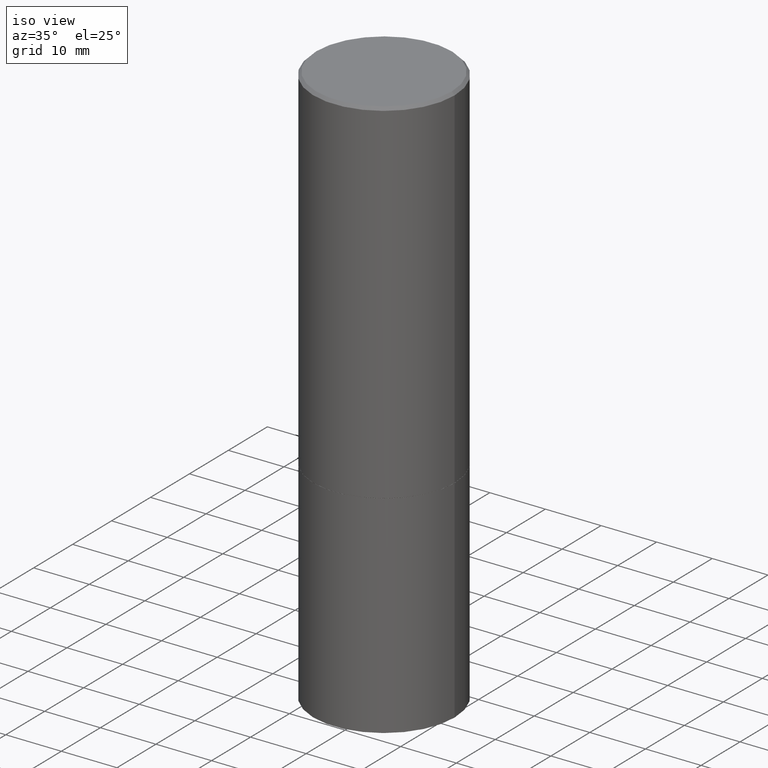
[diagram: clean part render]
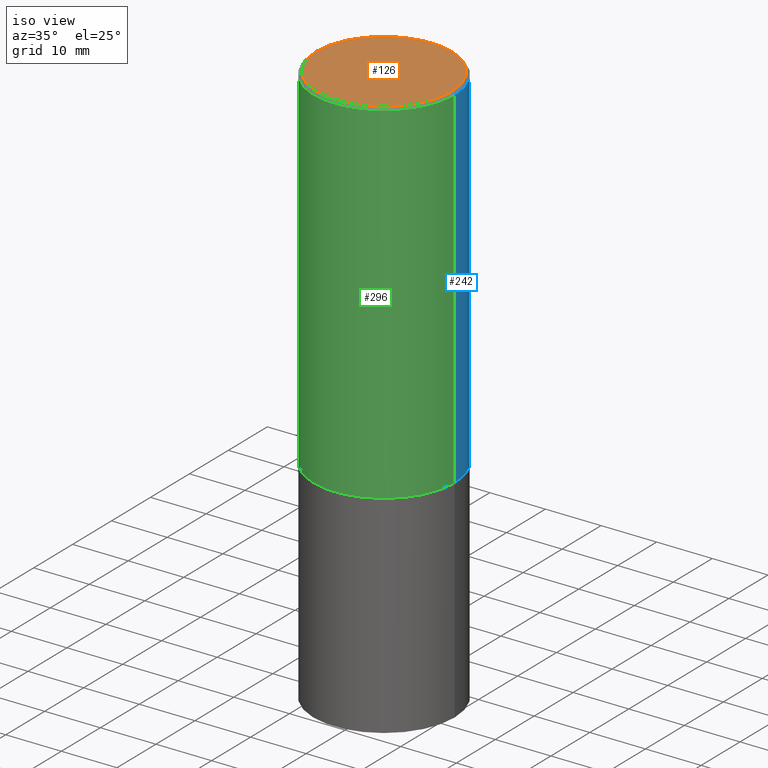
[diagram: same view with three faces highlighted in distinct colors, each labeled with its STEP entity id]
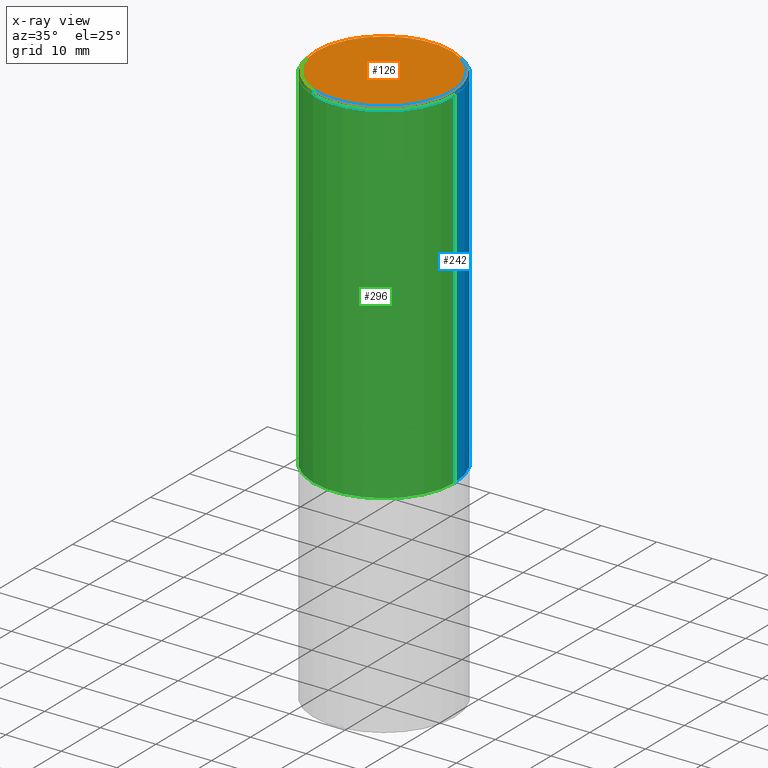
[diagram: x-ray of the same camera — body ghosted, the three highlighted faces saturated]
A machine part, iso view with three faces highlighted in distinct colors.
The next image is the same camera in x-ray (body ghosted, the three faces saturated) — at least one of them is partly hidden behind the body in this view.
Their STEP definitions:

[orange] entity #126 — the highlighted planar face has unit normal (0, -0, -1).
#18 = VERTEX_POINT ( 'NONE', #292 ) ;
#43 = DIRECTION ( 'NONE',  ( -1.000000000000000000, 6.982962677686265922E-15, -4.876176775795935793E-29 ) ) ;
#47 = FACE_OUTER_BOUND ( 'NONE', #88, .T. ) ;
#61 = CARTESIAN_POINT ( 'NONE',  ( -0.4799999999999996492, 3.386736898677836830E-15, 1.280553747027767124E-17 ) ) ;
#62 = EDGE_CURVE ( 'NONE', #310, #18, #147, .T. ) ;
#88 = EDGE_LOOP ( 'NONE', ( #316, #154 ) ) ;
#89 = CIRCLE ( 'NONE', #195, 0.4799999999999996492 ) ;
#103 = DIRECTION ( 'NONE',  ( -2.445468806185136597E-29, 3.491481338843145583E-15, 1.000000000000000000 ) ) ;
#126 = ADVANCED_FACE ( 'NONE', ( #47 ), #159, .F. ) ;
#147 = CIRCLE ( 'NONE', #287, 0.4799999999999996492 ) ;
#154 = ORIENTED_EDGE ( 'NONE', *, *, #166, .T. ) ;
#157 = DIRECTION ( 'NONE',  ( 2.438088387897960049E-29, -3.491481338843145188E-15, -1.000000000000000000 ) ) ;
#159 = PLANE ( 'NONE',  #362 ) ;
#166 = EDGE_CURVE ( 'NONE', #18, #310, #89, .T. ) ;
#176 = DIRECTION ( 'NONE',  ( 1.000000000000000000, -6.982962677686267499E-15, 4.876036955247132767E-29 ) ) ;
#185 = DIRECTION ( 'NONE',  ( 1.000000000000000000, -6.982962677686267499E-15, 4.876036955247132767E-29 ) ) ;
#187 = CARTESIAN_POINT ( 'NONE',  ( -3.131554243005659264E-46, 4.471029511141341874E-32, 1.280553747030123384E-17 ) ) ;
#195 = AXIS2_PLACEMENT_3D ( 'NONE', #187, #217, #185 ) ;
#216 = CARTESIAN_POINT ( 'NONE',  ( 3.351822085289405181E-15, 0.4799999999999996492, -1.669508273909558064E-15 ) ) ;
#217 = DIRECTION ( 'NONE',  ( -2.445468806185136597E-29, 3.491481338843145583E-15, 1.000000000000000000 ) ) ;
#224 = CARTESIAN_POINT ( 'NONE',  ( -3.131554243005659264E-46, 4.471029511141341874E-32, 1.280553747030123384E-17 ) ) ;
#287 = AXIS2_PLACEMENT_3D ( 'NONE', #224, #103, #176 ) ;
#292 = CARTESIAN_POINT ( 'NONE',  ( 0.4799999999999996492, -3.396558832296480127E-15, 1.280553747032483033E-17 ) ) ;
#310 = VERTEX_POINT ( 'NONE', #61 ) ;
#316 = ORIENTED_EDGE ( 'NONE', *, *, #62, .T. ) ;
#362 = AXIS2_PLACEMENT_3D ( 'NONE', #216, #157, #43 ) ;

[blue] entity #242 — the highlighted cylindrical surface (partial cylindrical patch) has radius 12.7 mm, axis along (-0, 0, 1).
#1 = EDGE_LOOP ( 'NONE', ( #300, #232, #81, #131 ) ) ;
#17 = CARTESIAN_POINT ( 'NONE',  ( 0.5000000000000000000, -1.221669320461215371E-14, -2.499000000000000110 ) ) ;
#28 = CARTESIAN_POINT ( 'NONE',  ( 0.4999999999999997224, -3.500078625662627502E-15, -0.02000000000000010797 ) ) ;
#56 = CYLINDRICAL_SURFACE ( 'NONE', #215, 0.4999999999999998335 ) ;
#70 = VERTEX_POINT ( 'NONE', #17 ) ;
#72 = AXIS2_PLACEMENT_3D ( 'NONE', #276, #347, #353 ) ;
#78 = VERTEX_POINT ( 'NONE', #236 ) ;
#80 = CIRCLE ( 'NONE', #297, 0.4999999999999997224 ) ;
#81 = ORIENTED_EDGE ( 'NONE', *, *, #145, .F. ) ;
#85 = EDGE_CURVE ( 'NONE', #70, #78, #207, .T. ) ;
#98 = DIRECTION ( 'NONE',  ( 1.000000000000000000, -6.982962677686267499E-15, 4.876176775795936353E-29 ) ) ;
#120 = LINE ( 'NONE', #221, #356 ) ;
#131 = ORIENTED_EDGE ( 'NONE', *, *, #208, .F. ) ;
#138 = DIRECTION ( 'NONE',  ( -2.445468806185136877E-29, 3.491481338843145188E-15, 1.000000000000000000 ) ) ;
#141 = FACE_OUTER_BOUND ( 'NONE', #1, .T. ) ;
#145 = EDGE_CURVE ( 'NONE', #333, #209, #80, .T. ) ;
#170 = CARTESIAN_POINT ( 'NONE',  ( 0.000000000000000000, 0.000000000000000000, 0.000000000000000000 ) ) ;
#207 = CIRCLE ( 'NONE', #72, 0.5000000000000000000 ) ;
#208 = EDGE_CURVE ( 'NONE', #70, #333, #277, .T. ) ;
#209 = VERTEX_POINT ( 'NONE', #278 ) ;
#210 = DIRECTION ( 'NONE',  ( 1.000000000000000000, -6.982962677686266711E-15, 0.000000000000000000 ) ) ;
#215 = AXIS2_PLACEMENT_3D ( 'NONE', #170, #281, #98 ) ;
#221 = CARTESIAN_POINT ( 'NONE',  ( -0.4999999999999998335, 3.552713678800499746E-15, -2.459467545127452330E-29 ) ) ;
#232 = ORIENTED_EDGE ( 'NONE', *, *, #340, .T. ) ;
#236 = CARTESIAN_POINT ( 'NONE',  ( -0.5000000000000000000, -8.448070674724411945E-16, -2.499000000000000110 ) ) ;
#242 = ADVANCED_FACE ( 'NONE', ( #141 ), #56, .T. ) ;
#256 = DIRECTION ( 'NONE',  ( -2.445468806185136877E-29, 3.491481338843145188E-15, 1.000000000000000000 ) ) ;
#267 = CARTESIAN_POINT ( 'NONE',  ( 4.890937612370299433E-31, -6.982962677686328587E-17, -0.02000000000000010797 ) ) ;
#275 = DIRECTION ( 'NONE',  ( -2.445468806185136597E-29, 3.491481338843145583E-15, 1.000000000000000000 ) ) ;
#276 = CARTESIAN_POINT ( 'NONE',  ( 6.111226546656657010E-29, -8.725211865769021935E-15, -2.499000000000000110 ) ) ;
#277 = LINE ( 'NONE', #318, #279 ) ;
#278 = CARTESIAN_POINT ( 'NONE',  ( -0.4999999999999997224, 3.421651712066268085E-15, -0.02000000000000010797 ) ) ;
#279 = VECTOR ( 'NONE', #138, 39.37007874015748143 ) ;
#281 = DIRECTION ( 'NONE',  ( -2.445468806185136597E-29, 3.491481338843145583E-15, 1.000000000000000000 ) ) ;
#297 = AXIS2_PLACEMENT_3D ( 'NONE', #267, #275, #210 ) ;
#300 = ORIENTED_EDGE ( 'NONE', *, *, #85, .T. ) ;
#318 = CARTESIAN_POINT ( 'NONE',  ( 0.4999999999999998335, -3.491481338843132566E-15, 2.438088387897967336E-29 ) ) ;
#333 = VERTEX_POINT ( 'NONE', #28 ) ;
#340 = EDGE_CURVE ( 'NONE', #78, #209, #120, .T. ) ;
#347 = DIRECTION ( 'NONE',  ( -2.445468806185136597E-29, 3.491481338843145583E-15, 1.000000000000000000 ) ) ;
#353 = DIRECTION ( 'NONE',  ( 1.000000000000000000, -6.982962677686265133E-15, 0.000000000000000000 ) ) ;
#356 = VECTOR ( 'NONE', #256, 39.37007874015748143 ) ;

[green] entity #296 — the highlighted cylindrical surface (partial cylindrical patch) has radius 12.7 mm, axis along (-0, 0, 1).
#4 = CARTESIAN_POINT ( 'NONE',  ( 4.890937612370299433E-31, -6.982962677686328587E-17, -0.02000000000000010797 ) ) ;
#15 = CIRCLE ( 'NONE', #107, 0.4999999999999997224 ) ;
#17 = CARTESIAN_POINT ( 'NONE',  ( 0.5000000000000000000, -1.221669320461215371E-14, -2.499000000000000110 ) ) ;
#28 = CARTESIAN_POINT ( 'NONE',  ( 0.4999999999999997224, -3.500078625662627502E-15, -0.02000000000000010797 ) ) ;
#30 = CARTESIAN_POINT ( 'NONE',  ( 0.000000000000000000, 0.000000000000000000, 0.000000000000000000 ) ) ;
#49 = DIRECTION ( 'NONE',  ( 1.000000000000000000, -6.982962677686265133E-15, 0.000000000000000000 ) ) ;
#54 = ORIENTED_EDGE ( 'NONE', *, *, #340, .F. ) ;
#70 = VERTEX_POINT ( 'NONE', #17 ) ;
#78 = VERTEX_POINT ( 'NONE', #236 ) ;
#107 = AXIS2_PLACEMENT_3D ( 'NONE', #4, #289, #263 ) ;
#116 = CIRCLE ( 'NONE', #304, 0.5000000000000000000 ) ;
#120 = LINE ( 'NONE', #221, #356 ) ;
#123 = ORIENTED_EDGE ( 'NONE', *, *, #178, .T. ) ;
#130 = EDGE_CURVE ( 'NONE', #209, #333, #15, .T. ) ;
#138 = DIRECTION ( 'NONE',  ( -2.445468806185136877E-29, 3.491481338843145188E-15, 1.000000000000000000 ) ) ;
#162 = ORIENTED_EDGE ( 'NONE', *, *, #130, .F. ) ;
#164 = DIRECTION ( 'NONE',  ( -2.445468806185136597E-29, 3.491481338843145583E-15, 1.000000000000000000 ) ) ;
#178 = EDGE_CURVE ( 'NONE', #78, #70, #116, .T. ) ;
#208 = EDGE_CURVE ( 'NONE', #70, #333, #277, .T. ) ;
#209 = VERTEX_POINT ( 'NONE', #278 ) ;
#221 = CARTESIAN_POINT ( 'NONE',  ( -0.4999999999999998335, 3.552713678800499746E-15, -2.459467545127452330E-29 ) ) ;
#228 = CYLINDRICAL_SURFACE ( 'NONE', #325, 0.4999999999999998335 ) ;
#235 = CARTESIAN_POINT ( 'NONE',  ( 6.111226546656657010E-29, -8.725211865769021935E-15, -2.499000000000000110 ) ) ;
#236 = CARTESIAN_POINT ( 'NONE',  ( -0.5000000000000000000, -8.448070674724411945E-16, -2.499000000000000110 ) ) ;
#256 = DIRECTION ( 'NONE',  ( -2.445468806185136877E-29, 3.491481338843145188E-15, 1.000000000000000000 ) ) ;
#260 = DIRECTION ( 'NONE',  ( 1.000000000000000000, -6.982962677686267499E-15, 4.876176775795936353E-29 ) ) ;
#263 = DIRECTION ( 'NONE',  ( 1.000000000000000000, -6.982962677686266711E-15, 0.000000000000000000 ) ) ;
#277 = LINE ( 'NONE', #318, #279 ) ;
#278 = CARTESIAN_POINT ( 'NONE',  ( -0.4999999999999997224, 3.421651712066268085E-15, -0.02000000000000010797 ) ) ;
#279 = VECTOR ( 'NONE', #138, 39.37007874015748143 ) ;
#289 = DIRECTION ( 'NONE',  ( -2.445468806185136597E-29, 3.491481338843145583E-15, 1.000000000000000000 ) ) ;
#296 = ADVANCED_FACE ( 'NONE', ( #303 ), #228, .T. ) ;
#303 = FACE_OUTER_BOUND ( 'NONE', #314, .T. ) ;
#304 = AXIS2_PLACEMENT_3D ( 'NONE', #235, #164, #49 ) ;
#314 = EDGE_LOOP ( 'NONE', ( #54, #123, #336, #162 ) ) ;
#318 = CARTESIAN_POINT ( 'NONE',  ( 0.4999999999999998335, -3.491481338843132566E-15, 2.438088387897967336E-29 ) ) ;
#325 = AXIS2_PLACEMENT_3D ( 'NONE', #30, #332, #260 ) ;
#332 = DIRECTION ( 'NONE',  ( -2.445468806185136597E-29, 3.491481338843145583E-15, 1.000000000000000000 ) ) ;
#333 = VERTEX_POINT ( 'NONE', #28 ) ;
#336 = ORIENTED_EDGE ( 'NONE', *, *, #208, .T. ) ;
#340 = EDGE_CURVE ( 'NONE', #78, #209, #120, .T. ) ;
#356 = VECTOR ( 'NONE', #256, 39.37007874015748143 ) ;